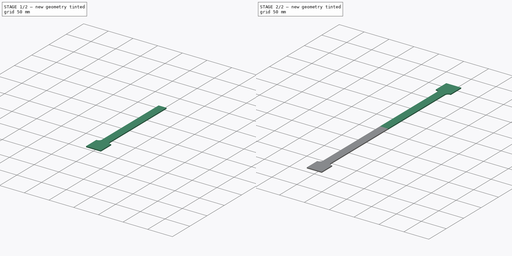
[diagram: build sequence overview — one tinted view per stage of 2, left to right]
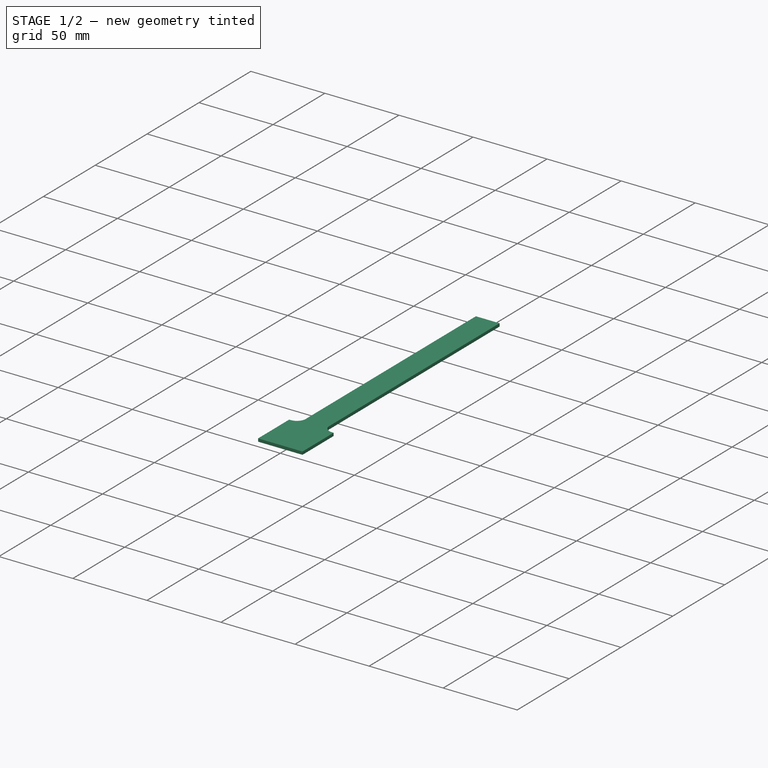
[diagram: stage 1 of 2 — iso view after this stage's code; geometry added in this stage tinted green]
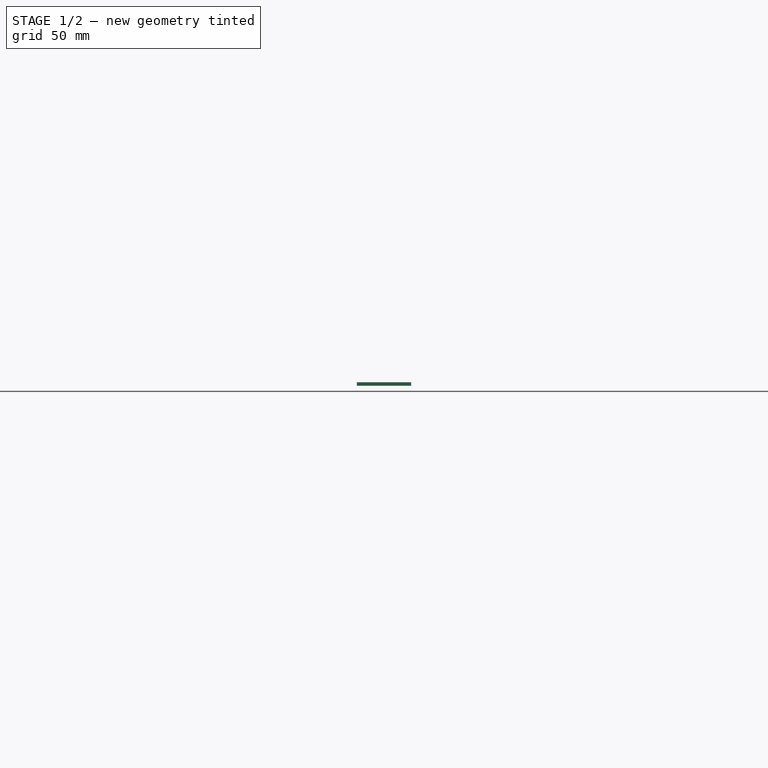
[diagram: stage 1 of 2 — front view after this stage's code; geometry added in this stage tinted green]
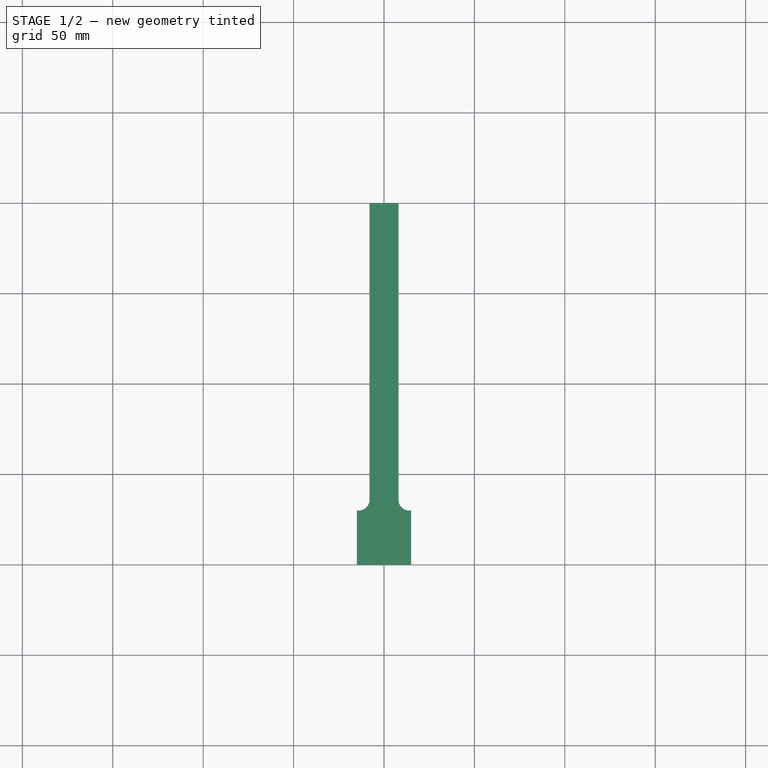
[diagram: stage 1 of 2 — top view after this stage's code; geometry added in this stage tinted green]
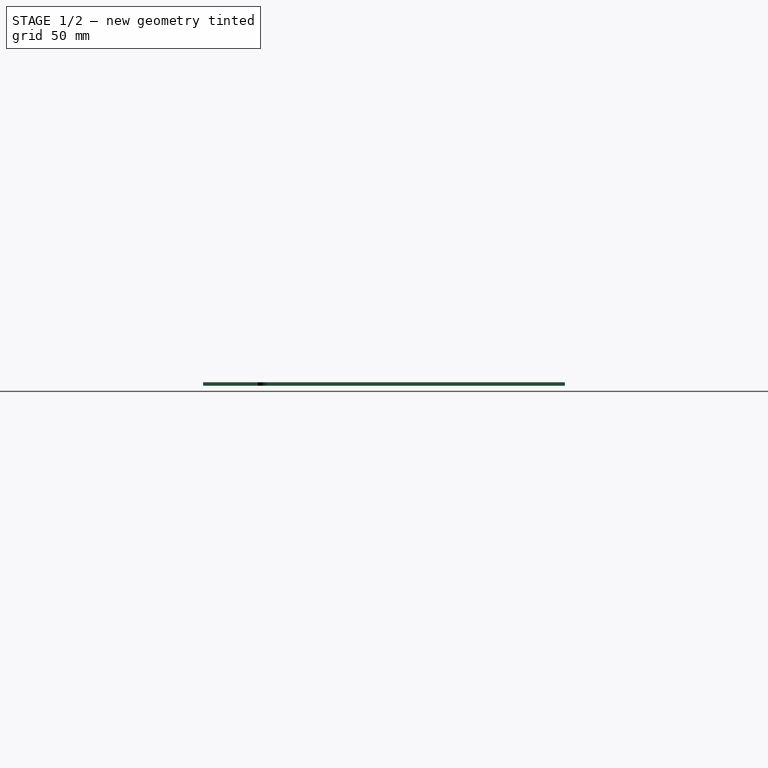
[diagram: stage 1 of 2 — right view after this stage's code; geometry added in this stage tinted green]
FCSTD DOCUMENT  (FreeCAD 0.18R16146 (Git))
Label: Anse
License: All rights reserved
LicenseURL: http://en.wikipedia.org/wiki/All_rights_reserved
objects: Sketcher::SketchObject×1, PartDesign::Pad×1, PartDesign::Mirrored×1, PartDesign::Body×1, Drawing::FeatureViewPart×1, Drawing::FeaturePage×1
note: 5 computed .brp shape members not serialized (recipe doc carries the construction recipe); baked Part::Feature solids carry a one-line shape summary decoded from their .brp

FEATURE [Sketcher::SketchObject] Sketch
  MapMode = 5
  Support = -> [XY_Plane]
  sketch-geometry (12):
    g0: LineSegment StartX=0 StartY=0 StartZ=0 EndX=15 EndY=0 EndZ=0
    g1: LineSegment StartX=15 StartY=30 StartZ=0 EndX=15 EndY=0 EndZ=0
    g2: LineSegment StartX=0 StartY=200 StartZ=0 EndX=8 EndY=200 EndZ=0
    g3: LineSegment StartX=8 StartY=200 StartZ=0 EndX=8 EndY=36 EndZ=0
    g4: LineSegment StartX=14 StartY=30 StartZ=0 EndX=15 EndY=30 EndZ=0
    g5: ArcOfCircle CenterX=14 CenterY=36 CenterZ=0 NormalX=0 NormalY=0 NormalZ=1 AngleXU=0 Radius=6 StartAngle=3.14159 EndAngle=4.71239
    g6: LineSegment StartX=0 StartY=0 StartZ=0 EndX=-15 EndY=0 EndZ=0
    g7: LineSegment StartX=-15 StartY=30 StartZ=0 EndX=-15 EndY=0 EndZ=0
    g8: LineSegment StartX=-14 StartY=30 StartZ=0 EndX=-15 EndY=30 EndZ=0
    g9: ArcOfCircle CenterX=-14 CenterY=36 CenterZ=0 NormalX=0 NormalY=0 NormalZ=1 AngleXU=0 Radius=6 StartAngle=4.71239 EndAngle=6.28319
    g10: LineSegment StartX=-8 StartY=200 StartZ=0 EndX=-8 EndY=36 EndZ=0
    g11: LineSegment StartX=0 StartY=200 StartZ=0 EndX=-8 EndY=200 EndZ=0
  constraints (34):
    c: PointOnObject(g0,g-1)
    c: PointOnObject(g0,g-2)
    c: PointOnObject(g0,g-1)
    c: Vertical(g1)
    c: Coincident(g1,g0)
    c: DistanceX(g0,g0) = 15
    c: DistanceY(g1,g1) = 30
    c: Horizontal(g2)
    c: PointOnObject(g2,g-2)
    c: DistanceX(g2,g2) = 8
    c: Vertical(g3)
    c: Coincident(g3,g2)
    c: DistanceY(g-1,g2) = 200
    c: Coincident(g4,g1)
    c: Tangent(g5,g3) = -1.5708
    c: Radius(g5) = 6
    c: Horizontal(g4)
    c: Tangent(g5,g4) = -1.5708
    c: Vertical(g7)
    c: Coincident(g7,g6)
    c: Vertical(g10)
    c: Coincident(g10,g11)
    c: Coincident(g8,g7)
    c: Tangent(g9,g10) = 1.5708
    c: Radius(g9) = 6
    c: Horizontal(g8)
    c: Tangent(g9,g8) = 1.5708
    c: Coincident(g6,g0)
    c: Horizontal(g6)
    c: Coincident(g11,g2)
    c: Horizontal(g11)
    c: DistanceX(g11,g11) = 8
    c: DistanceX(g6,g6) = 15
    c: DistanceY(g7,g7) = 30
FEATURE [PartDesign::Pad] Pad
  Length = 2
  Length2 = 100
  Profile = -> Sketch
  Type = 0
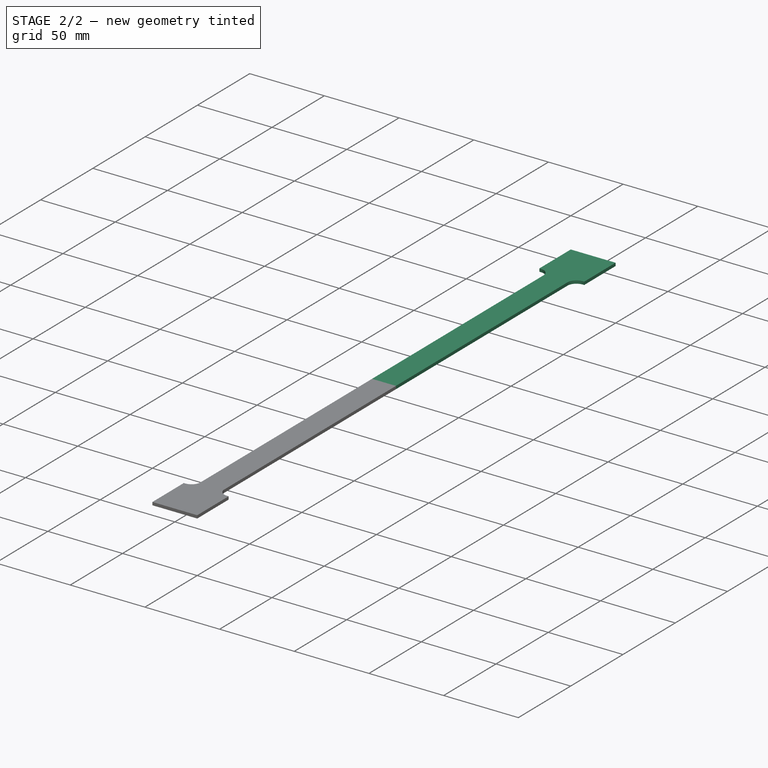
[diagram: stage 2 of 2 — iso view after this stage's code; geometry added in this stage tinted green]
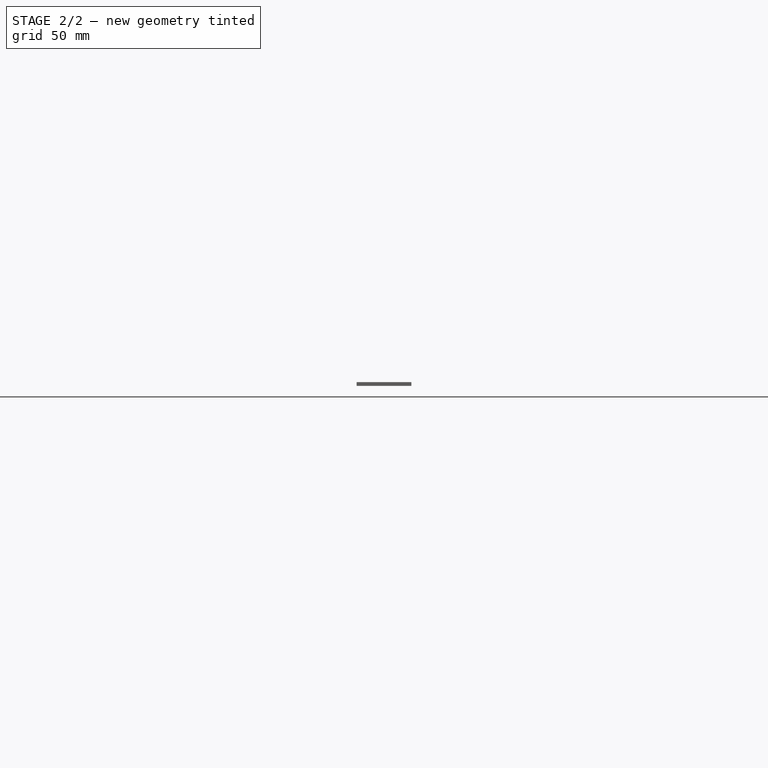
[diagram: stage 2 of 2 — front view after this stage's code; geometry added in this stage tinted green]
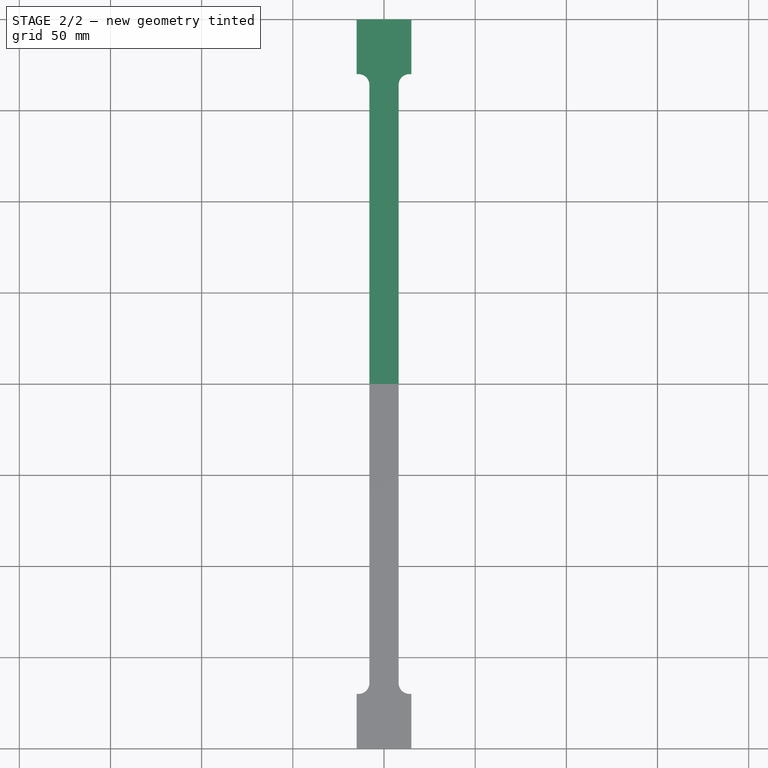
[diagram: stage 2 of 2 — top view after this stage's code; geometry added in this stage tinted green]
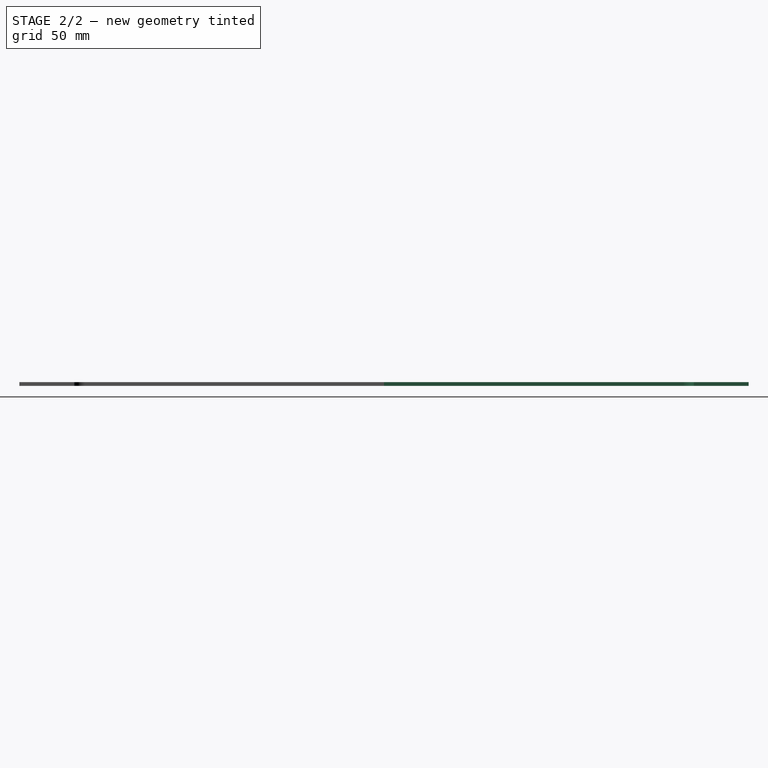
[diagram: stage 2 of 2 — right view after this stage's code; geometry added in this stage tinted green]
FEATURE [PartDesign::Mirrored] Mirrored
  BaseFeature = -> Pad
  MirrorPlane = -> Pad [Face6]
  Originals = -> [Pad]
FEATURE [PartDesign::Body] Body
  Group = -> [Sketch,Pad,Mirrored]
  Origin = -> Origin
  Tip = -> Mirrored
FEATURE [Drawing::FeatureViewPart] Ortho  label="Ortho_0_0"
  Direction = (0,0,1)
  HiddenWidth = 0.15
  LineWidth = 0.35
  Rotation = 90
  ShowHiddenLines = false
  ShowSmoothLines = false
  Source = -> Mirrored
  Tolerance = 0.05
  ViewResult = <g id="Ortho_0_0"\n   transform="rotate(90,15,118.5) translate(15,118.5) scale(1,1)"\n  >\n<g   fill="none"\n   stroke="rgb(0, 0, 0)"\n   stroke-linecap="butt"\n   stroke-linejoin="miter"\n   stroke-width="0.350000"\n   transform="scale(1,-1)"\n  >\n<path id= "1" d=" M 0 0 L 15 0 " />\n<path id= "2" d=" M 0 0 L -15 0 " />\n<path id= "3" d=" M 15 30 L 15 0 " />\n<path id= "4" d=" M 14 30 L 15 30 " />\n<path d="M8 36 A6 6 0 0 1 14 30" /><path id= "6" d=" M 8 200 L 8 36 " />\n<path id= "7" d=" M 0 200 L 8 200 " />\n<path id= "8" d=" M 0 200 L -8 200 " />\n<path id= "9" d=" M -8 200 L -8 36 " />\n<path d="M-14 30 A6 6 0 0 1 -8 36" /><path id= "11" d=" M -14 30 L -15 30 " />\n<path id= "12" d=" M -15 30 L -15 0 " />\n<path id= "13" d=" M 0 400 L 15 400 " />\n<path id= "14" d=" M 15 370 L 15 400 " />\n<path id= "15" d=" M 14 370 L 15 370 " />\n<path d="M8 364 A6 6 0 0 0 14 370" /><path id= "17" d=" M 8 200 L 8 364 " />\n<path id= "18" d=" M -8 200 L -8 364 " />\n<path d="M-14 370 A6 6 0 0 0 -8 364" /><path id= "20" d=" M -14 370 L -15 370 " />\n<path id= "21" d=" M -15 370 L -15 400 " />\n<path id= "22" d=" M 0 400 L -15 400 " />\n</g>\n</g>
  Visible = false
  X = 15
  Y = 118.5
FEATURE [Drawing::FeaturePage] Page
  EditableTexts = Dubois Jérôme | Anse | FreeCAD DRAWING | A3 | 1/1 | 1 | PN | DN | 28/12/2021 | REV A
  Group = -> [Ortho]
  Template = <path>
note: 1 file-system path scrubbed to <path> (originals preserved in the JSON sidecar)
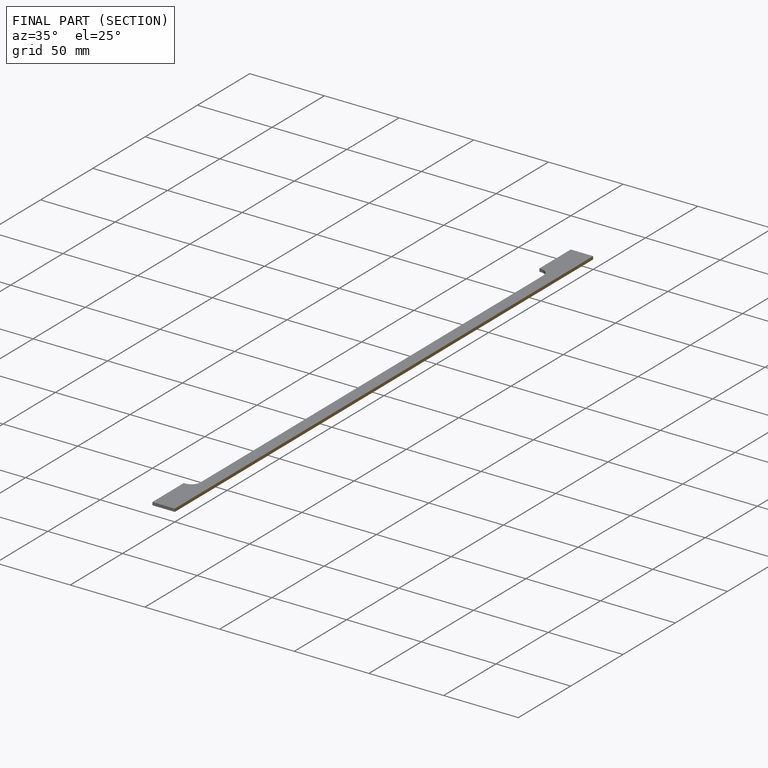
[diagram: finished part — half-section view (interior)]
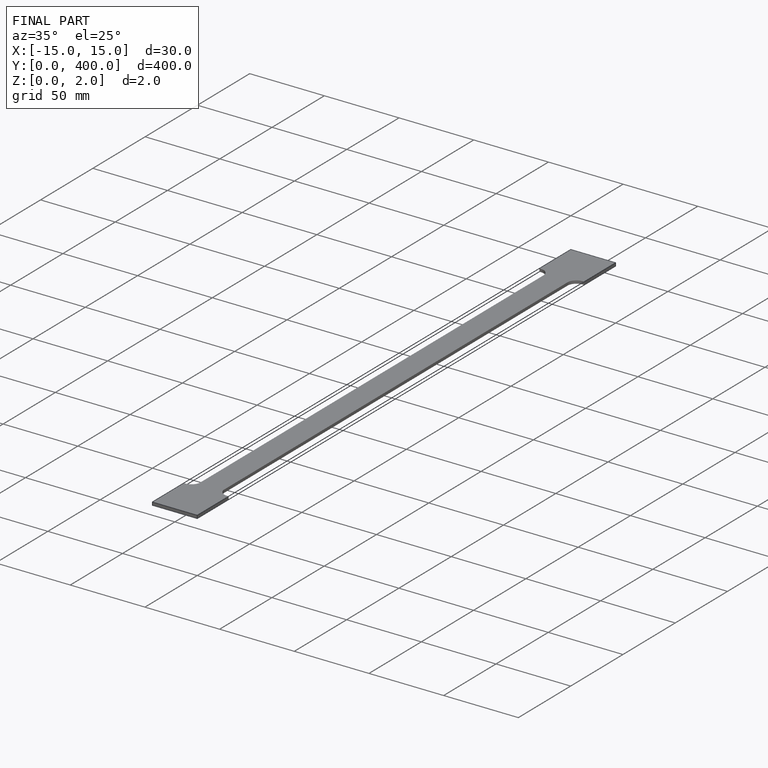
[diagram: finished part — iso view with bounding-box wireframe]
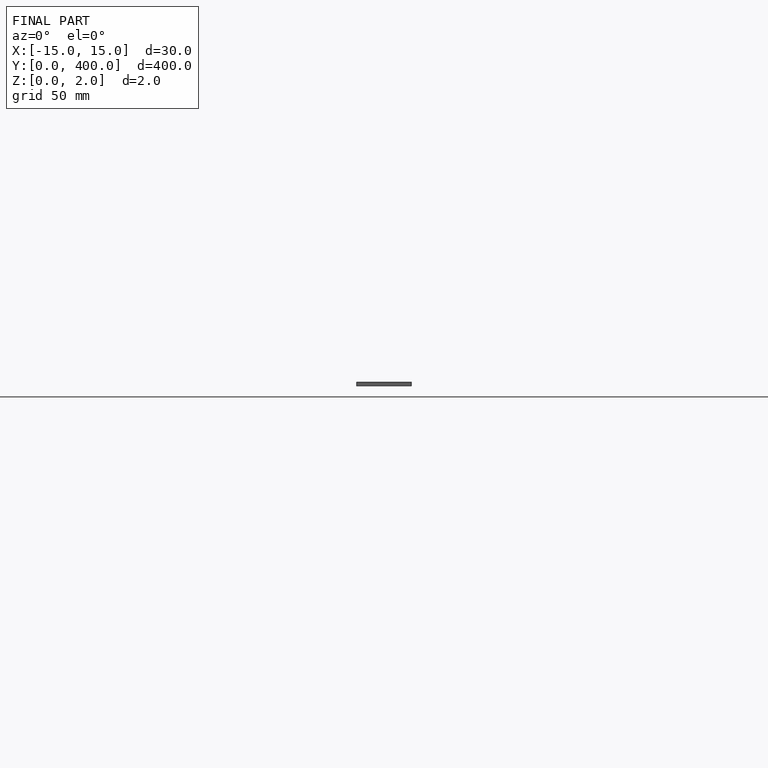
[diagram: finished part — front view with bounding-box wireframe]
